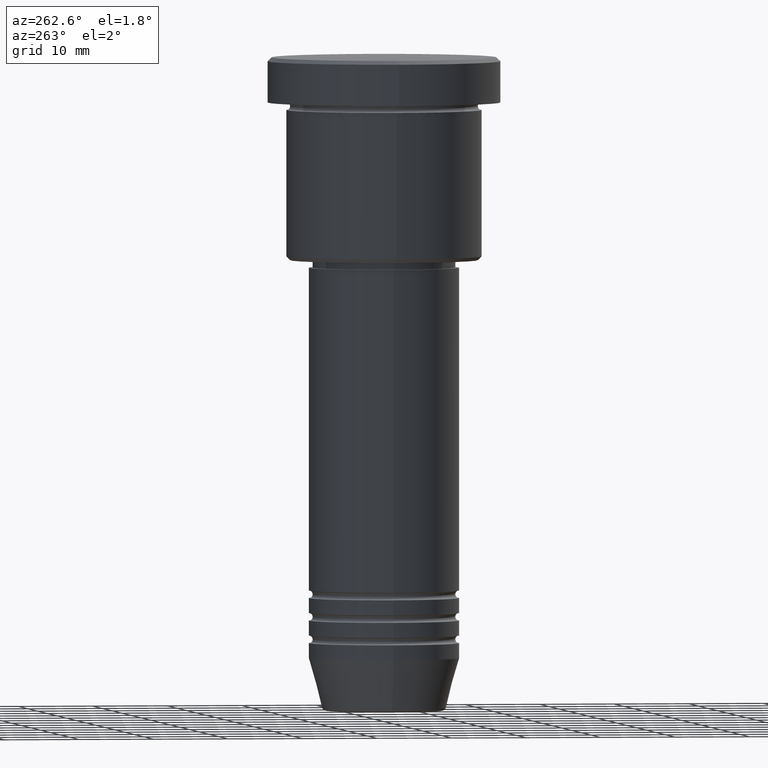
[diagram: clean part render]
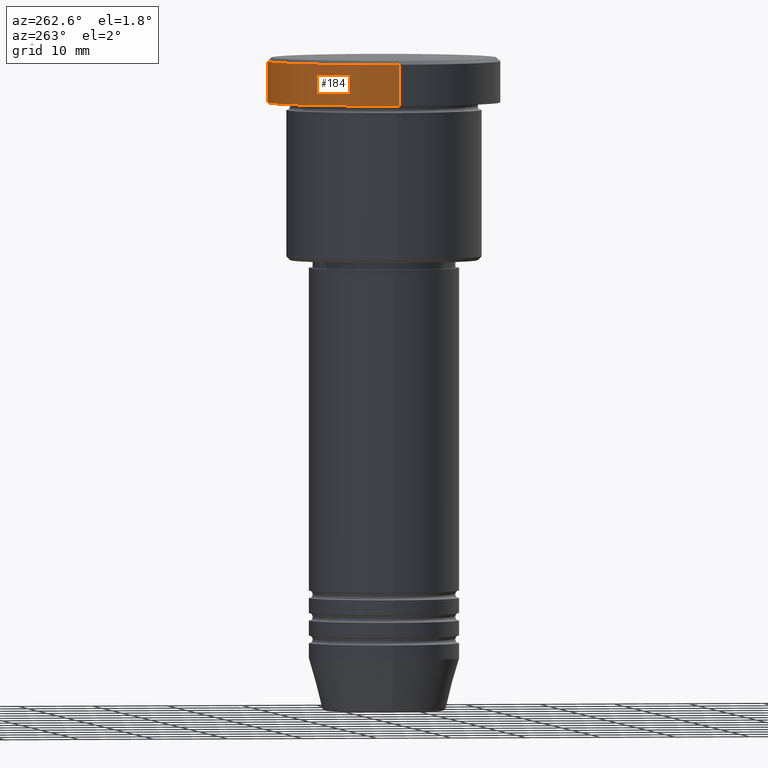
[diagram: same view with one face highlighted and labeled with its STEP entity id]
A machine part, auxiliary view. The second image highlights one B-rep face of the part: STEP entity #184.
In plain terms, the highlighted cylindrical surface (partial cylindrical patch) has radius 15.5 mm, axis along (-0, -0, 1).
Its self-contained STEP definition (entity closure, byte-faithful):
#13 = CARTESIAN_POINT ( 'NONE',  ( 0.000000000000000000, 0.000000000000000000, 0.000000000000000000 ) ) ;
#89 = VECTOR ( 'NONE', #342, 1000.000000000000000 ) ;
#132 = EDGE_CURVE ( 'NONE', #402, #831, #567, .T. ) ;
#139 = EDGE_CURVE ( 'NONE', #446, #831, #913, .T. ) ;
#145 = ORIENTED_EDGE ( 'NONE', *, *, #139, .F. ) ;
#151 = AXIS2_PLACEMENT_3D ( 'NONE', #553, #185, #727 ) ;
#184 = ADVANCED_FACE ( 'NONE', ( #754 ), #834, .T. ) ;
#185 = DIRECTION ( 'NONE',  ( 0.000000000000000000, 0.000000000000000000, -1.000000000000000000 ) ) ;
#207 = CARTESIAN_POINT ( 'NONE',  ( -15.50000000000000000, 1.898202538678397557E-15, 0.000000000000000000 ) ) ;
#225 = VECTOR ( 'NONE', #566, 1000.000000000000000 ) ;
#342 = DIRECTION ( 'NONE',  ( -0.000000000000000000, -0.000000000000000000, 1.000000000000000000 ) ) ;
#376 = EDGE_LOOP ( 'NONE', ( #592, #696, #521, #145 ) ) ;
#389 = DIRECTION ( 'NONE',  ( -0.000000000000000000, -0.000000000000000000, 1.000000000000000000 ) ) ;
#402 = VERTEX_POINT ( 'NONE', #1157 ) ;
#446 = VERTEX_POINT ( 'NONE', #990 ) ;
#521 = ORIENTED_EDGE ( 'NONE', *, *, #132, .T. ) ;
#532 = AXIS2_PLACEMENT_3D ( 'NONE', #853, #389, #765 ) ;
#537 = CARTESIAN_POINT ( 'NONE',  ( -15.50000000000000000, 1.898202538678397557E-15, -5.999999999999995559 ) ) ;
#546 = CARTESIAN_POINT ( 'NONE',  ( 15.50000000000000000, 0.000000000000000000, 0.000000000000000000 ) ) ;
#553 = CARTESIAN_POINT ( 'NONE',  ( 0.000000000000000000, 0.000000000000000000, -0.4999999999999987232 ) ) ;
#555 = EDGE_CURVE ( 'NONE', #446, #812, #755, .T. ) ;
#566 = DIRECTION ( 'NONE',  ( -0.000000000000000000, -0.000000000000000000, 1.000000000000000000 ) ) ;
#567 = CIRCLE ( 'NONE', #151, 15.50000000000000000 ) ;
#592 = ORIENTED_EDGE ( 'NONE', *, *, #555, .T. ) ;
#696 = ORIENTED_EDGE ( 'NONE', *, *, #920, .T. ) ;
#727 = DIRECTION ( 'NONE',  ( 1.000000000000000000, 0.000000000000000000, 0.000000000000000000 ) ) ;
#754 = FACE_OUTER_BOUND ( 'NONE', #376, .T. ) ;
#755 = CIRCLE ( 'NONE', #532, 15.50000000000000000 ) ;
#765 = DIRECTION ( 'NONE',  ( 1.000000000000000000, 0.000000000000000000, 0.000000000000000000 ) ) ;
#812 = VERTEX_POINT ( 'NONE', #537 ) ;
#831 = VERTEX_POINT ( 'NONE', #1067 ) ;
#834 = CYLINDRICAL_SURFACE ( 'NONE', #1070, 15.50000000000000000 ) ;
#853 = CARTESIAN_POINT ( 'NONE',  ( 0.000000000000000000, 0.000000000000000000, -5.999999999999995559 ) ) ;
#913 = LINE ( 'NONE', #546, #89 ) ;
#920 = EDGE_CURVE ( 'NONE', #812, #402, #1021, .T. ) ;
#937 = DIRECTION ( 'NONE',  ( 1.000000000000000000, 0.000000000000000000, 0.000000000000000000 ) ) ;
#990 = CARTESIAN_POINT ( 'NONE',  ( 15.50000000000000000, 0.000000000000000000, -5.999999999999995559 ) ) ;
#1021 = LINE ( 'NONE', #207, #225 ) ;
#1067 = CARTESIAN_POINT ( 'NONE',  ( 15.50000000000000000, 0.000000000000000000, -0.4999999999999987232 ) ) ;
#1070 = AXIS2_PLACEMENT_3D ( 'NONE', #13, #1122, #937 ) ;
#1122 = DIRECTION ( 'NONE',  ( -0.000000000000000000, -0.000000000000000000, 1.000000000000000000 ) ) ;
#1157 = CARTESIAN_POINT ( 'NONE',  ( -15.50000000000000000, 1.898202538678397557E-15, -0.4999999999999987232 ) ) ;